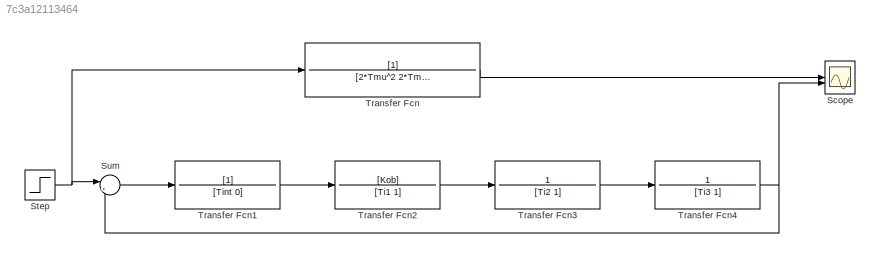
MODEL slx_7c3a12113464
KIND model
CONFIG AbsTol = auto
CONFIG EnableMultiTasking = off
CONFIG FixedStep = auto
CONFIG MaxStep = auto
CONFIG MinStep = auto
CONFIG RelTol = 1e-3
CONFIG SampleTimeConstraint = Unconstrained
CONFIG SolverName = VariableStepAuto
CONFIG StartTime = 0.0
CONFIG StopTime = 10.0
BLOCK [Scope] Scope
  Floating = off
  GraphicalSettings = {"GraphicalSettings":{"LegacySettings":true,"Style":{"Style":{"PlotType":"Auto"}}}}
  NumInputPorts = 2
  WasSavedAsWebScope = on
BLOCK [Step] Step
  SampleTime = 0
BLOCK [Sum] Sum
  Inputs = |+-
BLOCK [TransferFcn] Transfer Fcn
  Denominator = [2*Tmu^2 2*Tmu 1]
BLOCK [TransferFcn] Transfer Fcn1
  Denominator = [Tint 0]
BLOCK [TransferFcn] Transfer Fcn2
  Denominator = [Ti1 1]
  Numerator = [Kob]
BLOCK [TransferFcn] Transfer Fcn3
  Denominator = [Ti2 1]
  Numerator = 1
BLOCK [TransferFcn] Transfer Fcn4
  Denominator = [Ti3 1]
  Numerator = 1
NET Step:1 -> Sum:1, Transfer Fcn:1
LINE Sum:1 -> Transfer Fcn1:1
LINE Transfer Fcn1:1 -> Transfer Fcn2:1
LINE Transfer Fcn2:1 -> Transfer Fcn3:1
LINE Transfer Fcn3:1 -> Transfer Fcn4:1
NET Transfer Fcn4:1 -> Scope:2, Sum:2
LINE Transfer Fcn:1 -> Scope:1
note: NET lines group one-source signal fan-out (src -> all destinations, sorted); 1:1 wires keep LINE
